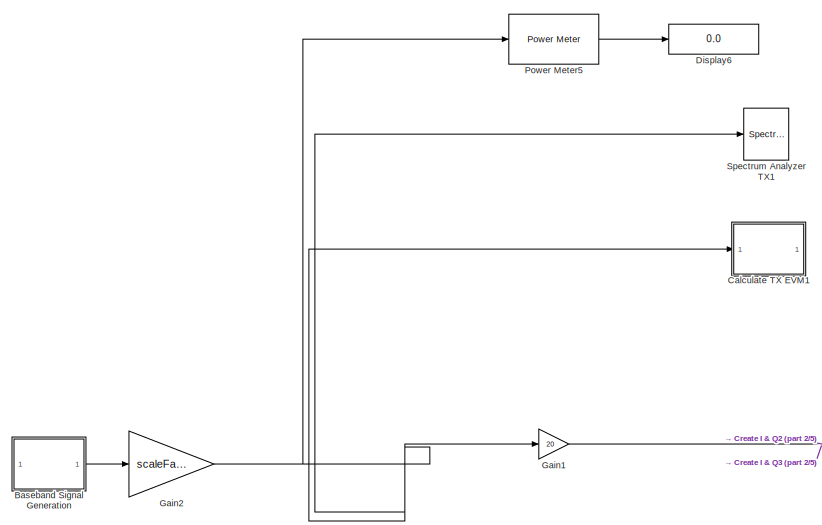
[diagram: root canvas - part 1/5, top left region]
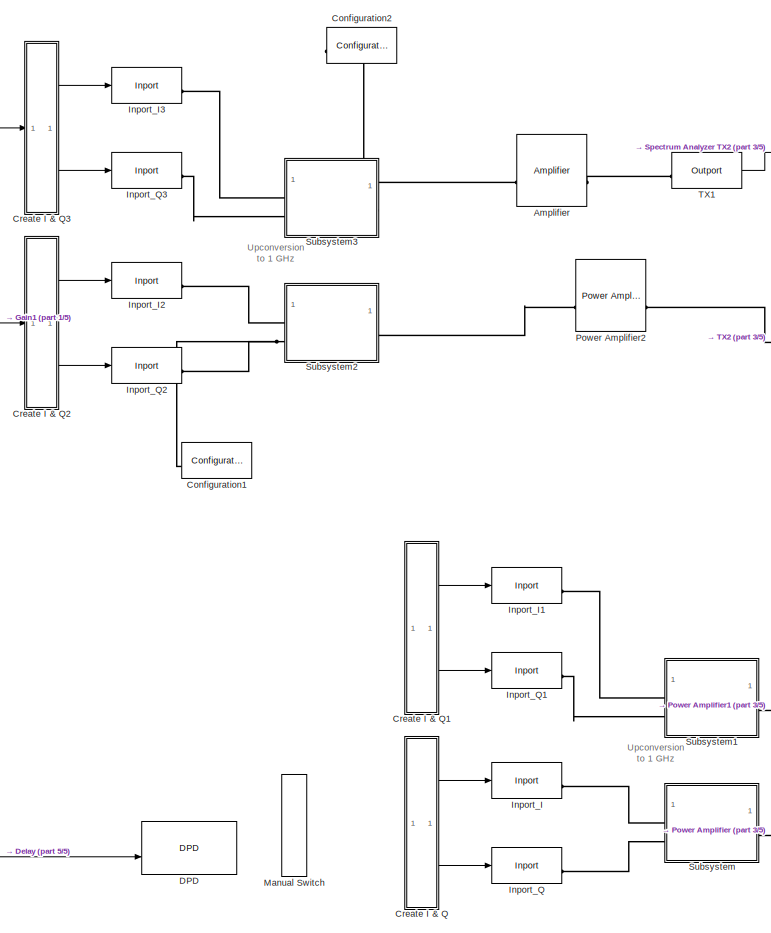
[diagram: root canvas - part 2/5, central region]
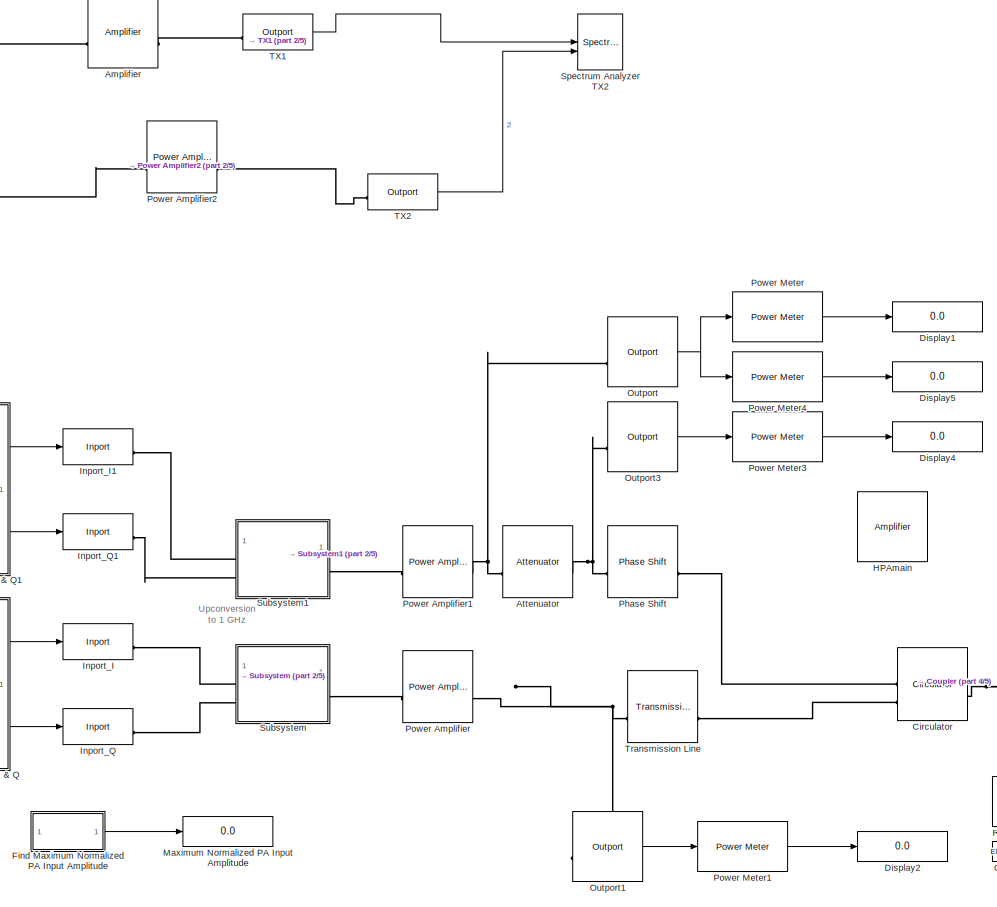
[diagram: root canvas - part 3/5, middle right region]
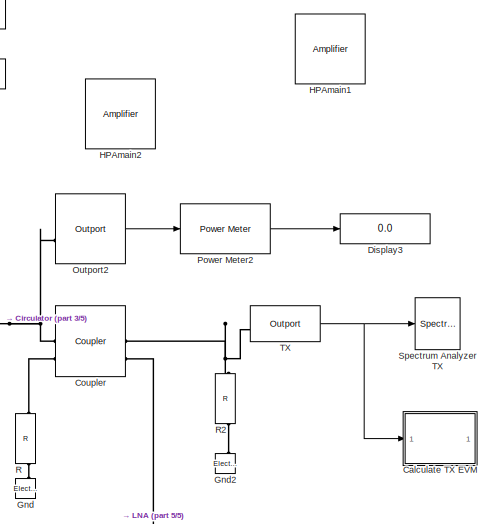
[diagram: root canvas - part 4/5, middle right region]
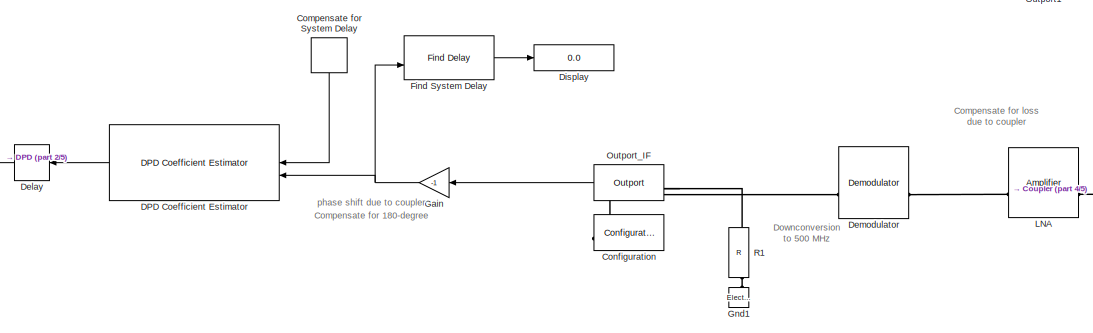
[diagram: root canvas - part 5/5, bottom center region]
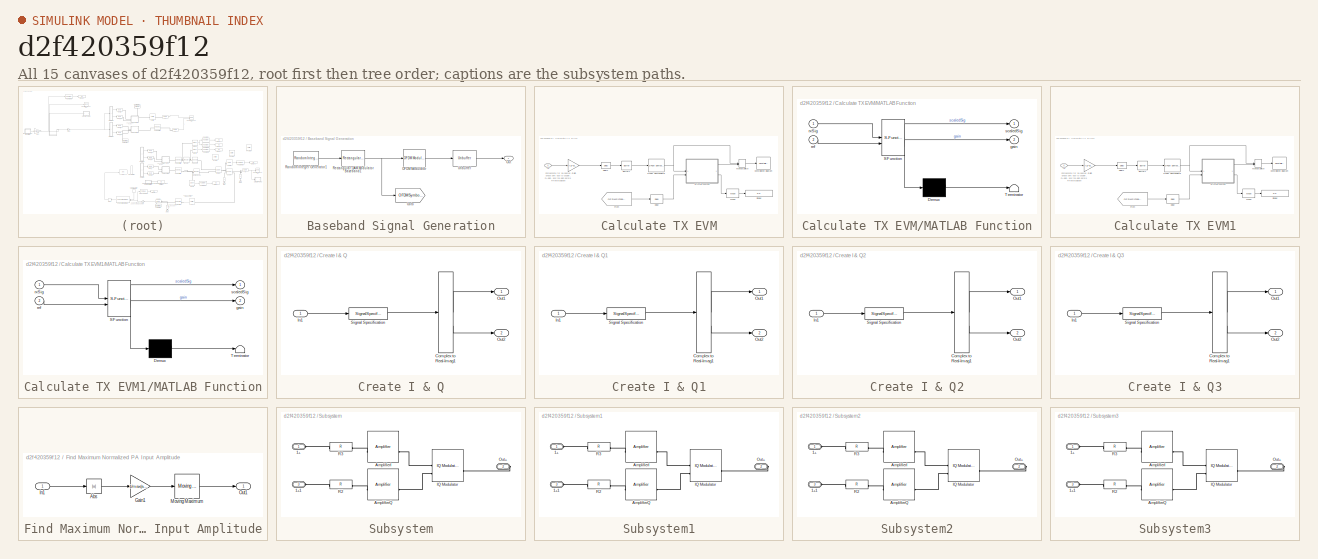
[diagram: thumbnail index - all 15 canvases of the model, root first then tree order]
MODEL slx_d2f420359f12
KIND model
CONFIG AbsTol = auto
CONFIG EnableMultiTasking = off
CONFIG FixedStep = auto
CONFIG InitFcn = tic\n% 100 MHz scenario\n% scs = 30e3;\n% fftLength = 4096;\n% NSubcarriers = 3276;\n% cpLength = 288; \n% windowLength = 20;\n\n% 5 MHz scenario\nscs = 30e3; % Subcarrier spacing\nfftLength = 256;\nNSubcarriers = 132;  \ncpLength = 18;\nwindowLength = 6;\n\nnGuardBandCarrier = fftLength - NSubcarriers;\nofdmSymLen = fftLength+cpLength;\noverSamplingRate = 7;\nfilterLength = 6*70;\n\nBW = scs*fftLength;              ...<+988ch>
CONFIG MaxStep = auto
CONFIG MinStep = auto
CONFIG PreLoadFcn = %{\n% 100 MHz scenario\n% scs = 30e3;\n% fftLength = 4096;\n% NSubcarriers = 3276;\n% cpLength = 288; \n% windowLength = 20;\n\n% 5 MHz scenario\nscs = 30e3;\nfftLength = 256;\nNSubcarriers = 132;  \ncpLength = 18;\nwindowLength = 6;\n\nnGuardBandCarrier = fftLength - NSubcarriers;\nofdmSymLen = fftLength+cpLength;\noverSamplingRate = 7;\nfilterLength = 6*70;\n\nBW = scs*fftLength;                       %  Signal BW\n...<+917ch>
CONFIG RelTol = 1e-3
CONFIG SampleTimeConstraint = Unconstrained
CONFIG SolverName = FixedStepAuto
CONFIG StartFcn = tic
CONFIG StartTime = 0.0
CONFIG StopFcn = lapsedTime = toc;
CONFIG StopTime = 5*Tstep*ofdmSymLen*6
BLOCK [Reference] Amplifier  REF=simrfV2elements/Amplifier
  SourceBlock = simrfV2elements/Amplifier
  SourceType = Amplifier
  UserDataPersistent = on
BLOCK [Reference] Attenuator  REF=simrfV2elements/Attenuator
  Commented = on
  SourceBlock = simrfV2elements/Attenuator
  SourceType = Attenuator
BLOCK [SubSystem] Baseband Signal Generation
  NameLocation = top
BLOCK [Goto] Baseband Signal Generation/Goto
  GotoTag = OFDMSymbols
  TagVisibility = global
BLOCK [Reference] Baseband Signal Generation/OFDM Modulator  REF=commofdm/OFDM Modulator
  SourceBlock = commofdm/OFDM Modulator
  SourceType = OFDM Modulator
BLOCK [Outport] Baseband Signal Generation/Out
  VectorParamsAs1DForOutWhenUnconnected = off
BLOCK [Reference] Baseband Signal Generation/Random Integer Generator1  REF=commrandsrc3/Random Integer
Generator
  SourceBlock = commrandsrc3/Random Integer\nGenerator
  SourceType = Random Integer Generator
BLOCK [Reference] Baseband Signal Generation/Rectangular QAM Modulator Baseband1  REF=commdigbbndam3/Rectangular QAM
Modulator
Baseband
  SourceBlock = commdigbbndam3/Rectangular QAM\nModulator\nBaseband
  SourceType = Rectangular QAM Modulator Baseband
BLOCK [Unbuffer] Baseband Signal Generation/Unbuffer
  NameLocation = top
BLOCK [SubSystem] Calculate TX EVM
  Commented = on
BLOCK [Buffer] Calculate TX EVM/Buffer1
  N = ofdmSymLen*overSamplingRate
  OutputFrames = off
BLOCK [ConstellationDiagram] Calculate TX EVM/Constellation Diagram
  DefaultConfigurationName = comm.scopes.ConstellationDiagramBlockCfg
  EnableMeasurements = on
  GraphicalSettings = {"GraphicalSettings":{"Style":{}}}
  ReferenceConstellation = {[-7+7i  -7+5i  -7+3i  -7+1i  -7-1i  -7-3i  -7-5i  -7-7i  -5+7i  -5+5i  -5+3i  -5+1i  -5-1i  -5-3i  -5-5i  -5-7i  -3+7i  -3+5i  -3+3i  -3+1i  -3-1i  -3-3i  -3-5i  -3-7i  -1+7i  -1+5i  -1+3i  -1+1i  -1-1i  -1-3i  -1-5i  -1-7i   1+7i   1+5i   1+3i   1+1i   1-1i   1-3i   1-5i   1-7i   3+7i   3+5i   3+3i   3+1i   3-1i   3-3i   3-5i   3-7i   5+7i   5+5i   5+3i   5+1i   5-1i   5-3i   5-5i   5-7i   7+7i ...<+50ch>
  ScopeFrameLocation = window
  WasSavedAsWebScope = on
  WindowPosition = [501.000000,93.000000,973.000000,546.000000,]
  XLimits = [-9.7559 9.963]
  YLimits = [-9.7559 9.963]
BLOCK [Delay] Calculate TX EVM/Delay
  DelayLength = 2*(fftLength-2*N-1)
  InputPortMap = u0
  InputProcessing = Columns as channels (frame based)
BLOCK [Delay] Calculate TX EVM/Delay1
  DelayLength = ofdmSymLen*overSamplingRate
  InputPortMap = u0
  InputProcessing = Columns as channels (frame based)
BLOCK [Display] Calculate TX EVM/Display
  Decimation = 1
BLOCK [From] Calculate TX EVM/From
  GotoTag = OFDMSymbols
  TagVisibility = global
BLOCK [Gain] Calculate TX EVM/Gain
  Gain = 1/(1j*gain*scaleFactor)
BLOCK [Inport] Calculate TX EVM/In
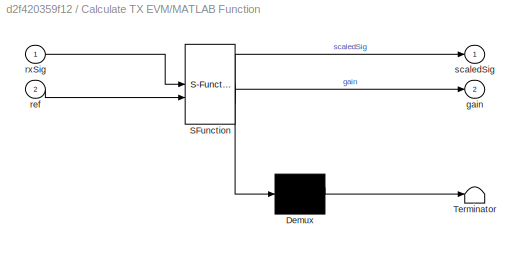
BLOCK [SubSystem] Calculate TX EVM/MATLAB Function
  ErrorFcn = Stateflow.Translate.translate
  PermitHierarchicalResolution = ExplicitOnly
  SFBlockType = MATLAB Function
  TreatAsAtomicUnit = on
BLOCK [Demux] Calculate TX EVM/MATLAB Function/ Demux 
  Outputs = 1
BLOCK [S-Function] Calculate TX EVM/MATLAB Function/ SFunction 
  EnableBusSupport = on
  FunctionName = sf_sfun
  PortCounts = [2 3]
  SFcnIsStateOwnerBlock = off
  SFunctionDeploymentMode = off
  Tag = Stateflow S-Function 2
BLOCK [Terminator] Calculate TX EVM/MATLAB Function/ Terminator 
BLOCK [Outport] Calculate TX EVM/MATLAB Function/gain
  Port = 2
BLOCK [Inport] Calculate TX EVM/MATLAB Function/ref
  Port = 2
BLOCK [Inport] Calculate TX EVM/MATLAB Function/rxSig
BLOCK [Outport] Calculate TX EVM/MATLAB Function/scaledSig
BLOCK [ManualSwitch] Calculate TX EVM/Manual Switch
  CurrentSetting = 0
BLOCK [Reference] Calculate TX EVM/Mean  REF=dspstat3/Mean
  SourceBlock = dspstat3/Mean
  SourceType = Mean
  UserDataPersistent = on
BLOCK [Reference] Calculate TX EVM/OFDM Demodulator  REF=commofdm/OFDM Demodulator
  SourceBlock = commofdm/OFDM Demodulator
  SourceType = OFDM Demodulator
BLOCK [SubSystem] Calculate TX EVM1
BLOCK [Buffer] Calculate TX EVM1/Buffer1
  N = ofdmSymLen*overSamplingRate
  OutputFrames = off
BLOCK [ConstellationDiagram] Calculate TX EVM1/Constellation Diagram
  DefaultConfigurationName = comm.scopes.ConstellationDiagramBlockCfg
  EnableMeasurements = on
  GraphicalSettings = {"GraphicalSettings":{"Style":{}}}
  ReferenceConstellation = {[-7+7i  -7+5i  -7+3i  -7+1i  -7-1i  -7-3i  -7-5i  -7-7i  -5+7i  -5+5i  -5+3i  -5+1i  -5-1i  -5-3i  -5-5i  -5-7i  -3+7i  -3+5i  -3+3i  -3+1i  -3-1i  -3-3i  -3-5i  -3-7i  -1+7i  -1+5i  -1+3i  -1+1i  -1-1i  -1-3i  -1-5i  -1-7i   1+7i   1+5i   1+3i   1+1i   1-1i   1-3i   1-5i   1-7i   3+7i   3+5i   3+3i   3+1i   3-1i   3-3i   3-5i   3-7i   5+7i   5+5i   5+3i   5+1i   5-1i   5-3i   5-5i   5-7i   7+7i ...<+50ch>
  ScopeFrameLocation = window
  Visible = on
  WasSavedAsWebScope = on
  WindowPosition = [501.000000,93.000000,973.000000,546.000000,]
  XLimits = [-9.7559 9.963]
  YLimits = [-9.7559 9.963]
BLOCK [Delay] Calculate TX EVM1/Delay
  DelayLength = 2*(fftLength-2*N-1)
  InputPortMap = u0
  InputProcessing = Columns as channels (frame based)
BLOCK [Delay] Calculate TX EVM1/Delay1
  DelayLength = ofdmSymLen*overSamplingRate
  InputPortMap = u0
  InputProcessing = Columns as channels (frame based)
BLOCK [Display] Calculate TX EVM1/Display
  Decimation = 1
BLOCK [From] Calculate TX EVM1/From
  GotoTag = OFDMSymbols
  TagVisibility = global
BLOCK [Gain] Calculate TX EVM1/Gain
  Gain = 1/(1j*gain*scaleFactor)
BLOCK [Inport] Calculate TX EVM1/In
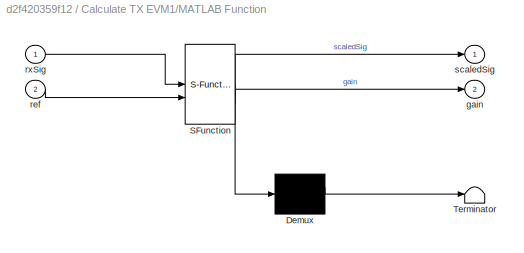
BLOCK [SubSystem] Calculate TX EVM1/MATLAB Function
  ErrorFcn = Stateflow.Translate.translate
  PermitHierarchicalResolution = ExplicitOnly
  SFBlockType = MATLAB Function
  TreatAsAtomicUnit = on
BLOCK [Demux] Calculate TX EVM1/MATLAB Function/ Demux 
  Outputs = 1
BLOCK [S-Function] Calculate TX EVM1/MATLAB Function/ SFunction 
  EnableBusSupport = on
  FunctionName = sf_sfun
  PortCounts = [2 3]
  SFcnIsStateOwnerBlock = off
  SFunctionDeploymentMode = off
  Tag = Stateflow S-Function 1
BLOCK [Terminator] Calculate TX EVM1/MATLAB Function/ Terminator 
BLOCK [Outport] Calculate TX EVM1/MATLAB Function/gain
  Port = 2
BLOCK [Inport] Calculate TX EVM1/MATLAB Function/ref
  Port = 2
BLOCK [Inport] Calculate TX EVM1/MATLAB Function/rxSig
BLOCK [Outport] Calculate TX EVM1/MATLAB Function/scaledSig
BLOCK [ManualSwitch] Calculate TX EVM1/Manual Switch
  CurrentSetting = 0
BLOCK [Reference] Calculate TX EVM1/Mean  REF=dspstat3/Mean
  SourceBlock = dspstat3/Mean
  SourceType = Mean
  UserDataPersistent = on
BLOCK [Reference] Calculate TX EVM1/OFDM Demodulator  REF=commofdm/OFDM Demodulator
  SourceBlock = commofdm/OFDM Demodulator
  SourceType = OFDM Demodulator
BLOCK [Reference] Circulator  REF=simrfV2junction1/Circulator
  Commented = on
  SourceBlock = simrfV2junction1/Circulator
  SourceType = Ideal Circulators
  UserDataPersistent = on
BLOCK [Delay] Compensate for System Delay
  Commented = on
  DelayLength = 0
  InputPortMap = u0
  NameLocation = left
BLOCK [Reference] Configuration  REF=simrfV2util1/Configuration
  Commented = on
  NameLocation = top
  SourceBlock = simrfV2util1/Configuration
  SourceType = Configuration
BLOCK [Reference] Configuration1  REF=simrfV2util1/Configuration
  NameLocation = top
  SourceBlock = simrfV2util1/Configuration
  SourceType = Configuration
BLOCK [Reference] Configuration2  REF=simrfV2util1/Configuration
  NameLocation = top
  SourceBlock = simrfV2util1/Configuration
  SourceType = Configuration
BLOCK [Reference] Coupler  REF=simrfV2junction1/Coupler
  Commented = on
  SourceBlock = simrfV2junction1/Coupler
  SourceType = Ideal Couplers
  UserDataPersistent = on
BLOCK [SubSystem] Create I & Q
  Commented = on
  ShowPortLabels = none
BLOCK [ComplexToRealImag] Create I & Q/Complex to Real-Imag1
BLOCK [Inport] Create I & Q/In1
BLOCK [Outport] Create I & Q/Out1
  VectorParamsAs1DForOutWhenUnconnected = off
BLOCK [Outport] Create I & Q/Out2
  Port = 2
  VectorParamsAs1DForOutWhenUnconnected = off
BLOCK [SignalSpecification] Create I & Q/Signal Specification
  Dimensions = 1
BLOCK [SubSystem] Create I & Q1
  Commented = on
  ShowPortLabels = none
BLOCK [ComplexToRealImag] Create I & Q1/Complex to Real-Imag1
BLOCK [Inport] Create I & Q1/In1
BLOCK [Outport] Create I & Q1/Out1
  VectorParamsAs1DForOutWhenUnconnected = off
BLOCK [Outport] Create I & Q1/Out2
  Port = 2
  VectorParamsAs1DForOutWhenUnconnected = off
BLOCK [SignalSpecification] Create I & Q1/Signal Specification
  Dimensions = 1
BLOCK [SubSystem] Create I & Q2
  ShowPortLabels = none
BLOCK [ComplexToRealImag] Create I & Q2/Complex to Real-Imag1
BLOCK [Inport] Create I & Q2/In1
BLOCK [Outport] Create I & Q2/Out1
  VectorParamsAs1DForOutWhenUnconnected = off
BLOCK [Outport] Create I & Q2/Out2
  Port = 2
  VectorParamsAs1DForOutWhenUnconnected = off
BLOCK [SignalSpecification] Create I & Q2/Signal Specification
  Dimensions = 1
BLOCK [SubSystem] Create I & Q3
  ShowPortLabels = none
BLOCK [ComplexToRealImag] Create I & Q3/Complex to Real-Imag1
BLOCK [Inport] Create I & Q3/In1
BLOCK [Outport] Create I & Q3/Out1
  VectorParamsAs1DForOutWhenUnconnected = off
BLOCK [Outport] Create I & Q3/Out2
  Port = 2
  VectorParamsAs1DForOutWhenUnconnected = off
BLOCK [SignalSpecification] Create I & Q3/Signal Specification
  Dimensions = 1
BLOCK [Reference] DPD  REF=commrfcorlib/DPD
  Commented = on
  SourceBlock = commrfcorlib/DPD
  SourceType = DPD
BLOCK [Reference] DPD Coefficient Estimator  REF=commrfcorlib/DPD
Coefficient Estimator
  Commented = on
  SourceBlock = commrfcorlib/DPD\nCoefficient Estimator
  SourceType = DPD Coefficient Estimator
BLOCK [Delay] Delay
  Commented = on
  DelayLength = 1
  InputPortMap = u0
BLOCK [Reference] Demodulator  REF=simrfV2systems/Demodulator
  Commented = on
  NameLocation = top
  SourceBlock = simrfV2systems/Demodulator
  SourceType = Demodulator
BLOCK [Display] Display
  Commented = on
  Decimation = 1
BLOCK [Display] Display1
  Commented = on
  Decimation = 1
BLOCK [Display] Display2
  Commented = on
  Decimation = 1
BLOCK [Display] Display3
  Commented = on
  Decimation = 1
BLOCK [Display] Display4
  Commented = on
  Decimation = 1
BLOCK [Display] Display5
  Commented = on
  Decimation = 1
BLOCK [Display] Display6
  Decimation = 1
BLOCK [SubSystem] Find Maximum Normalized PA Input Amplitude
  Commented = on
  ShowPortLabels = none
BLOCK [Abs] Find Maximum Normalized PA Input Amplitude/Abs
  SaturateOnIntegerOverflow = off
BLOCK [Gain] Find Maximum Normalized PA Input Amplitude/Gain1
  Gain = 1/max(abs(paInput))
BLOCK [Inport] Find Maximum Normalized PA Input Amplitude/In1
BLOCK [Reference] Find Maximum Normalized PA Input Amplitude/Moving Maximum  REF=dspstat3/Moving
Maximum
  SourceBlock = dspstat3/Moving\nMaximum
  SourceType = dsp.simulink.MovingMaximum
BLOCK [Outport] Find Maximum Normalized PA Input Amplitude/Out1
BLOCK [Reference] Find System Delay  REF=commutil2/Find Delay
  Commented = on
  SourceBlock = commutil2/Find Delay
  SourceType = Find Delay
BLOCK [Gain] Gain
  Commented = on
  Gain = -1
BLOCK [Gain] Gain1
  Gain = 20
BLOCK [Gain] Gain2
  Gain = scaleFactor
BLOCK [Reference] Gnd  REF=simrfV2_lib/Elements/Electrical Reference
  Commented = on
  NameLocation = right
  SourceBlock = simrfV2_lib/Elements/Electrical Reference
  SourceType = Electrical Reference
BLOCK [Reference] Gnd1  REF=simrfV2_lib/Elements/Electrical Reference
  Commented = on
  NameLocation = right
  SourceBlock = simrfV2_lib/Elements/Electrical Reference
  SourceType = Electrical Reference
BLOCK [Reference] Gnd2  REF=simrfV2_lib/Elements/Electrical Reference
  Commented = on
  NameLocation = right
  SourceBlock = simrfV2_lib/Elements/Electrical Reference
  SourceType = Electrical Reference
BLOCK [Reference] HPAmain  REF=simrfV2elements/Amplifier
  Commented = on
  SourceBlock = simrfV2elements/Amplifier
  SourceType = Amplifier
  UserDataPersistent = on
BLOCK [Reference] HPAmain1  REF=simrfV2elements/Amplifier
  Commented = on
  SourceBlock = simrfV2elements/Amplifier
  SourceType = Amplifier
  UserDataPersistent = on
BLOCK [Reference] HPAmain2  REF=simrfV2elements/Amplifier
  Commented = on
  SourceBlock = simrfV2elements/Amplifier
  SourceType = Amplifier
  UserDataPersistent = on
BLOCK [Reference] Inport_I  REF=simrfV2util1/Inport
  Commented = on
  SourceBlock = simrfV2util1/Inport
  SourceType = Inport
BLOCK [Reference] Inport_I1  REF=simrfV2util1/Inport
  Commented = on
  SourceBlock = simrfV2util1/Inport
  SourceType = Inport
BLOCK [Reference] Inport_I2  REF=simrfV2util1/Inport
  SourceBlock = simrfV2util1/Inport
  SourceType = Inport
BLOCK [Reference] Inport_I3  REF=simrfV2util1/Inport
  SourceBlock = simrfV2util1/Inport
  SourceType = Inport
BLOCK [Reference] Inport_Q  REF=simrfV2util1/Inport
  Commented = on
  SourceBlock = simrfV2util1/Inport
  SourceType = Inport
BLOCK [Reference] Inport_Q1  REF=simrfV2util1/Inport
  Commented = on
  SourceBlock = simrfV2util1/Inport
  SourceType = Inport
BLOCK [Reference] Inport_Q2  REF=simrfV2util1/Inport
  SourceBlock = simrfV2util1/Inport
  SourceType = Inport
BLOCK [Reference] Inport_Q3  REF=simrfV2util1/Inport
  SourceBlock = simrfV2util1/Inport
  SourceType = Inport
BLOCK [Reference] LNA  REF=simrfV2elements/Amplifier
  Commented = on
  SourceBlock = simrfV2elements/Amplifier
  SourceType = Amplifier
BLOCK [ManualSwitch] Manual Switch
  Commented = on
  CurrentSetting = 0
BLOCK [Display] Maximum Normalized PA Input Amplitude
  Commented = on
  Decimation = 1
BLOCK [Reference] Outport  REF=simrfV2util1/Outport
  Commented = on
  SourceBlock = simrfV2util1/Outport
  SourceType = Outport
BLOCK [Reference] Outport1  REF=simrfV2util1/Outport
  Commented = on
  SourceBlock = simrfV2util1/Outport
  SourceType = Outport
BLOCK [Reference] Outport2  REF=simrfV2util1/Outport
  Commented = on
  SourceBlock = simrfV2util1/Outport
  SourceType = Outport
BLOCK [Reference] Outport3  REF=simrfV2util1/Outport
  Commented = on
  SourceBlock = simrfV2util1/Outport
  SourceType = Outport
BLOCK [Reference] Outport_IF  REF=simrfV2util1/Outport
  Commented = on
  NameLocation = top
  SourceBlock = simrfV2util1/Outport
  SourceType = Outport
BLOCK [Reference] Phase Shift  REF=simrfV2elements/Phase Shift
  Commented = on
  SourceBlock = simrfV2elements/Phase Shift
  SourceType = Phase Shift
BLOCK [Reference] Power Amplifier  REF=simrfV2elements/Power Amplifier
  Commented = on
  SourceBlock = simrfV2elements/Power Amplifier
  SourceType = Power Amplifier with Memory
BLOCK [Reference] Power Amplifier1  REF=simrfV2elements/Power Amplifier
  Commented = on
  SourceBlock = simrfV2elements/Power Amplifier
  SourceType = Power Amplifier with Memory
BLOCK [Reference] Power Amplifier2  REF=simrfV2elements/Power Amplifier
  Commented = through
  SourceBlock = simrfV2elements/Power Amplifier
  SourceType = Power Amplifier with Memory
BLOCK [Reference] Power Meter  REF=dspstat3/Power Meter
  Commented = on
  LibrarySourceBlock = commutil2/Power Meter
  SourceBlock = dspstat3/Power Meter
  SourceType = dsp.simulink.PowerMeter
BLOCK [Reference] Power Meter1  REF=dspstat3/Power Meter
  Commented = on
  LibrarySourceBlock = commutil2/Power Meter
  SourceBlock = dspstat3/Power Meter
  SourceType = dsp.simulink.PowerMeter
BLOCK [Reference] Power Meter2  REF=dspstat3/Power Meter
  Commented = on
  LibrarySourceBlock = commutil2/Power Meter
  SourceBlock = dspstat3/Power Meter
  SourceType = dsp.simulink.PowerMeter
BLOCK [Reference] Power Meter3  REF=dspstat3/Power Meter
  Commented = on
  LibrarySourceBlock = commutil2/Power Meter
  SourceBlock = dspstat3/Power Meter
  SourceType = dsp.simulink.PowerMeter
BLOCK [Reference] Power Meter4  REF=dspstat3/Power Meter
  Commented = on
  LibrarySourceBlock = commutil2/Power Meter
  SourceBlock = dspstat3/Power Meter
  SourceType = dsp.simulink.PowerMeter
BLOCK [Reference] Power Meter5  REF=dspstat3/Power Meter
  LibrarySourceBlock = commutil2/Power Meter
  SourceBlock = dspstat3/Power Meter
  SourceType = dsp.simulink.PowerMeter
BLOCK [Reference] R  REF=simrfV2elements/R
  Commented = on
  NameLocation = left
  SourceBlock = simrfV2elements/R
  SourceType = Resistor
BLOCK [Reference] R1  REF=simrfV2elements/R
  Commented = on
  NameLocation = left
  SourceBlock = simrfV2elements/R
  SourceType = Resistor
BLOCK [Reference] R2  REF=simrfV2elements/R
  Commented = on
  NameLocation = left
  SourceBlock = simrfV2elements/R
  SourceType = Resistor
BLOCK [SpectrumAnalyzer] Spectrum Analyzer TX
  AveragingMethod = Running
  AxesScaling = Manual
  Commented = on
  DefaultConfigurationName = spbscopes.SpectrumAnalyzerBlockCfg
  ExpandToolstrip = on
  FrequencyInputRBWFromPort = 0
  FrequencyInputRBWPort = 0
  FrequencyResolutionMethod = Window length
  FrequencyVectorFromPort = 0
  FrequencyVectorPort = 0
  GraphicalSettings = {"GraphicalSettings":{"Style":{"BackgroundColor":[0.1568627450980392,0.1568627450980392,0.1568627450980392],"AxesColor":[0,0,0],"LabelsColor":[0.6862745098039216,0.6862745098039216,0.6862745098039216],"PreserveColors":false,"Visible":[true],"LineStyle":["-"],"LineColor":[[1,1,0.06666666666666667]],"LineWidth":[0.5],"Marker":["none"],"FontSize":"small"},"Cursors":{"Enabled":false,"XLocation":[2,8],...<+828ch>
  IsFrequencyInputMode = 0
  Method = Welch
  NameLocation = top
  ReferenceLoad = 50
  SampleRate = 860160000
  ScopeFrameLocation = window
  ScopeSpecificationString = spbscopes.SpectrumAnalyzerBlockCfg('CurrentConfiguration', extmgr.ConfigurationSet(extmgr.Configuration('Core','General UI',true),extmgr.Configuration('Core','Source UI',true),extmgr.Configuration('Sources','WiredSimulink',true),extmgr.Configuration('Sources','Streaming',false),extmgr.Configuration('Sources','Simulink',false),extmgr.Configuration('Sources','Workspace',false),extmgr.Configuration('...<+3454ch>  <repeated x3 — deduplicated; at blocks: Spectrum Analyzer TX, Spectrum Analyzer TX1, Spectrum Analyzer TX2>
  Span = 1843200000
  SpectralAverages = 4
  StartFrequency = -921600000
  StopFrequency = 921600000
  WasSavedAsWebScope = on
  WindowLength = 8192
  WindowPosition = [1.000000,49.000000,1920.000000,1009.000000,]
  YLimits = [-76.29372752,28.83162013]
BLOCK [SpectrumAnalyzer] Spectrum Analyzer TX1
  AveragingMethod = Running
  AxesScaling = Manual
  Commented = on
  DefaultConfigurationName = spbscopes.SpectrumAnalyzerBlockCfg
  ExpandToolstrip = on
  FrequencyInputRBWFromPort = 0
  FrequencyInputRBWPort = 0
  FrequencyResolutionMethod = Window length
  FrequencyVectorFromPort = 0
  FrequencyVectorPort = 0
  GraphicalSettings = {"GraphicalSettings":{"Style":{"BackgroundColor":[0.1568627450980392,0.1568627450980392,0.1568627450980392],"AxesColor":[0,0,0],"LabelsColor":[0.6862745098039216,0.6862745098039216,0.6862745098039216],"PreserveColors":false,"Visible":[true],"LineStyle":["-"],"LineColor":[[1,1,0.06666666666666667]],"LineWidth":[0.5],"Marker":["none"],"FontSize":"small"},"Cursors":{"Enabled":false,"XLocation":[2,8],...<+828ch>
  IsFrequencyInputMode = 0
  NameLocation = top
  ReferenceLoad = 50
  SampleRate = 860160000
  ScopeFrameLocation = window
  Span = 1843200000
  SpectralAverages = 4
  StartFrequency = -921600000
  StopFrequency = 921600000
  WasSavedAsWebScope = on
  WindowLength = 8192
  WindowPosition = [1.000000,49.000000,1920.000000,1009.000000,]
  YLimits = [-179.09714316,8.32050372]
BLOCK [SpectrumAnalyzer] Spectrum Analyzer TX2
  AveragingMethod = Running
  AxesScaling = Manual
  DefaultConfigurationName = spbscopes.SpectrumAnalyzerBlockCfg
  ExpandToolstrip = on
  FrequencyInputRBWFromPort = 0
  FrequencyInputRBWPort = 0
  FrequencyResolutionMethod = Window length
  FrequencyVectorFromPort = 0
  FrequencyVectorPort = 0
  GraphicalSettings = {"GraphicalSettings":{"Style":{"BackgroundColor":[0.1568627450980392,0.1568627450980392,0.1568627450980392],"AxesColor":[0,0,0],"LabelsColor":[0.6862745098039216,0.6862745098039216,0.6862745098039216],"PreserveColors":false,"Visible":[true,true],"LineStyle":["-","-"],"LineColor":[[1,1,0.06666666666666667],[0.07450980392156863,0.6235294117647059,1]],"LineWidth":[0.5,1.5],"Marker":["none","none"],"F...<+891ch>
  IsFrequencyInputMode = 0
  NameLocation = top
  NumInputPorts = 2
  ReferenceLoad = 50
  SampleRate = 860160000
  ScopeFrameLocation = window
  ShowLegend = on
  Span = 1843200000
  SpectralAverages = 4
  StartFrequency = -921600000
  StopFrequency = 921600000
  Visible = on
  WasSavedAsWebScope = on
  WindowLength = 8192
  WindowPosition = [1.000000,49.000000,1920.000000,1009.000000,]
  YLimits = [-105.72280799,47.03546634]
BLOCK [SubSystem] Subsystem
  Commented = on
  ShowPortLabels = none
BLOCK [PMIOPort] Subsystem/1+
  Side = Left
BLOCK [PMIOPort] Subsystem/1+1
  Port = 3
  Side = Left
BLOCK [Reference] Subsystem/AmplifierI  REF=simrfV2elements/Amplifier
  NameLocation = top
  SourceBlock = simrfV2elements/Amplifier
  SourceType = Amplifier
BLOCK [Reference] Subsystem/AmplifierQ  REF=simrfV2elements/Amplifier
  SourceBlock = simrfV2elements/Amplifier
  SourceType = Amplifier
BLOCK [Reference] Subsystem/IQ Modulator  REF=simrfV2systems/IQ Modulator
  SourceBlock = simrfV2systems/IQ Modulator
  SourceType = IQ Modulator
BLOCK [PMIOPort] Subsystem/Out+
  Port = 2
  Side = Right
BLOCK [Reference] Subsystem/R2  REF=simrfV2elements/R
  SourceBlock = simrfV2elements/R
  SourceType = Resistor
BLOCK [Reference] Subsystem/R3  REF=simrfV2elements/R
  SourceBlock = simrfV2elements/R
  SourceType = Resistor
BLOCK [SubSystem] Subsystem1
  Commented = on
  ShowPortLabels = none
BLOCK [PMIOPort] Subsystem1/1+
  Side = Left
BLOCK [PMIOPort] Subsystem1/1+1
  Port = 3
  Side = Left
BLOCK [Reference] Subsystem1/AmplifierI  REF=simrfV2elements/Amplifier
  NameLocation = top
  SourceBlock = simrfV2elements/Amplifier
  SourceType = Amplifier
BLOCK [Reference] Subsystem1/AmplifierQ  REF=simrfV2elements/Amplifier
  SourceBlock = simrfV2elements/Amplifier
  SourceType = Amplifier
BLOCK [Reference] Subsystem1/IQ Modulator  REF=simrfV2systems/IQ Modulator
  SourceBlock = simrfV2systems/IQ Modulator
  SourceType = IQ Modulator
BLOCK [PMIOPort] Subsystem1/Out+
  Port = 2
  Side = Right
BLOCK [Reference] Subsystem1/R2  REF=simrfV2elements/R
  SourceBlock = simrfV2elements/R
  SourceType = Resistor
BLOCK [Reference] Subsystem1/R3  REF=simrfV2elements/R
  SourceBlock = simrfV2elements/R
  SourceType = Resistor
BLOCK [SubSystem] Subsystem2
  ShowPortLabels = none
BLOCK [PMIOPort] Subsystem2/1+
  Side = Left
BLOCK [PMIOPort] Subsystem2/1+1
  Port = 3
  Side = Left
BLOCK [Reference] Subsystem2/AmplifierI  REF=simrfV2elements/Amplifier
  NameLocation = top
  SourceBlock = simrfV2elements/Amplifier
  SourceType = Amplifier
BLOCK [Reference] Subsystem2/AmplifierQ  REF=simrfV2elements/Amplifier
  SourceBlock = simrfV2elements/Amplifier
  SourceType = Amplifier
BLOCK [Reference] Subsystem2/IQ Modulator  REF=simrfV2systems/IQ Modulator
  SourceBlock = simrfV2systems/IQ Modulator
  SourceType = IQ Modulator
BLOCK [PMIOPort] Subsystem2/Out+
  Port = 2
  Side = Right
BLOCK [Reference] Subsystem2/R2  REF=simrfV2elements/R
  SourceBlock = simrfV2elements/R
  SourceType = Resistor
BLOCK [Reference] Subsystem2/R3  REF=simrfV2elements/R
  SourceBlock = simrfV2elements/R
  SourceType = Resistor
BLOCK [SubSystem] Subsystem3
  ShowPortLabels = none
BLOCK [PMIOPort] Subsystem3/1+
  Side = Left
BLOCK [PMIOPort] Subsystem3/1+1
  Port = 3
  Side = Left
BLOCK [Reference] Subsystem3/AmplifierI  REF=simrfV2elements/Amplifier
  NameLocation = top
  SourceBlock = simrfV2elements/Amplifier
  SourceType = Amplifier
BLOCK [Reference] Subsystem3/AmplifierQ  REF=simrfV2elements/Amplifier
  SourceBlock = simrfV2elements/Amplifier
  SourceType = Amplifier
BLOCK [Reference] Subsystem3/IQ Modulator  REF=simrfV2systems/IQ Modulator
  SourceBlock = simrfV2systems/IQ Modulator
  SourceType = IQ Modulator
BLOCK [PMIOPort] Subsystem3/Out+
  Port = 2
  Side = Right
BLOCK [Reference] Subsystem3/R2  REF=simrfV2elements/R
  SourceBlock = simrfV2elements/R
  SourceType = Resistor
BLOCK [Reference] Subsystem3/R3  REF=simrfV2elements/R
  SourceBlock = simrfV2elements/R
  SourceType = Resistor
BLOCK [Reference] TX  REF=simrfV2util1/Outport
  Commented = on
  SourceBlock = simrfV2util1/Outport
  SourceType = Outport
BLOCK [Reference] TX1  REF=simrfV2util1/Outport
  SourceBlock = simrfV2util1/Outport
  SourceType = Outport
BLOCK [Reference] TX2  REF=simrfV2util1/Outport
  SourceBlock = simrfV2util1/Outport
  SourceType = Outport
BLOCK [Reference] Transmission Line  REF=simrfV2elements/Transmission
Line
  Commented = on
  NameLocation = top
  SourceBlock = simrfV2elements/Transmission\nLine
  SourceType = Transmission Line
  UserDataPersistent = on
ANNOTATION (root): Downconversion to 500 MHz
ANNOTATION (root): Upconversion to 1 GHz
ANNOTATION (root): Compensate for 180-degree phase shift due to coupler
ANNOTATION (root): Compensate for loss due to coupler
ANNOTATION Calculate TX EVM: Compensate for 90-degree phase shift due to coupler, PA gain, and the gain before FIR interpolation
ANNOTATION Calculate TX EVM1: Compensate for 90-degree phase shift due to coupler, PA gain, and the gain before FIR interpolation
LINE Baseband Signal Generation/OFDM Modulator:1 -> Baseband Signal Generation/Unbuffer:1
LINE Baseband Signal Generation/Random Integer Generator1:1 -> Baseband Signal Generation/Rectangular QAM Modulator Baseband1:1
NET Baseband Signal Generation/Rectangular QAM Modulator Baseband1:1 -> Baseband Signal Generation/Goto:1, Baseband Signal Generation/OFDM Modulator:1
LINE Baseband Signal Generation/Unbuffer:1 -> Baseband Signal Generation/Out:1
LINE Baseband Signal Generation:1 -> Gain2:1
LINE Calculate TX EVM/Buffer1:1 -> Calculate TX EVM/OFDM Demodulator:1
LINE Calculate TX EVM/Delay1:1 -> Calculate TX EVM/Buffer1:1
LINE Calculate TX EVM/Delay:1 -> Calculate TX EVM/MATLAB Function:2
LINE Calculate TX EVM/From:1 -> Calculate TX EVM/Delay:1
LINE Calculate TX EVM/Gain:1 -> Calculate TX EVM/Delay1:1
LINE Calculate TX EVM/In:1 -> Calculate TX EVM/Gain:1
LINE Calculate TX EVM/MATLAB Function:1 -> Calculate TX EVM/Manual Switch:2
LINE Calculate TX EVM/MATLAB Function:2 -> Calculate TX EVM/Mean:1
LINE Calculate TX EVM/Manual Switch:1 -> Calculate TX EVM/Constellation Diagram:1
LINE Calculate TX EVM/Mean:1 -> Calculate TX EVM/Display:1
NET Calculate TX EVM/OFDM Demodulator:1 -> Calculate TX EVM/MATLAB Function:1, Calculate TX EVM/Manual Switch:1
LINE Calculate TX EVM1/Buffer1:1 -> Calculate TX EVM1/OFDM Demodulator:1
LINE Calculate TX EVM1/Delay1:1 -> Calculate TX EVM1/Buffer1:1
LINE Calculate TX EVM1/Delay:1 -> Calculate TX EVM1/MATLAB Function:2
LINE Calculate TX EVM1/From:1 -> Calculate TX EVM1/Delay:1
LINE Calculate TX EVM1/Gain:1 -> Calculate TX EVM1/Delay1:1
LINE Calculate TX EVM1/In:1 -> Calculate TX EVM1/Gain:1
LINE Calculate TX EVM1/MATLAB Function:1 -> Calculate TX EVM1/Manual Switch:2
LINE Calculate TX EVM1/MATLAB Function:2 -> Calculate TX EVM1/Mean:1
LINE Calculate TX EVM1/Manual Switch:1 -> Calculate TX EVM1/Constellation Diagram:1
LINE Calculate TX EVM1/Mean:1 -> Calculate TX EVM1/Display:1
NET Calculate TX EVM1/OFDM Demodulator:1 -> Calculate TX EVM1/MATLAB Function:1, Calculate TX EVM1/Manual Switch:1
LINE Compensate for System Delay:1 -> DPD Coefficient Estimator:1
LINE Create I & Q/Complex to Real-Imag1:1 -> Create I & Q/Out1:1
LINE Create I & Q/Complex to Real-Imag1:2 -> Create I & Q/Out2:1
LINE Create I & Q/In1:1 -> Create I & Q/Signal Specification:1
LINE Create I & Q/Signal Specification:1 -> Create I & Q/Complex to Real-Imag1:1
LINE Create I & Q1/Complex to Real-Imag1:1 -> Create I & Q1/Out1:1
LINE Create I & Q1/Complex to Real-Imag1:2 -> Create I & Q1/Out2:1
LINE Create I & Q1/In1:1 -> Create I & Q1/Signal Specification:1
LINE Create I & Q1/Signal Specification:1 -> Create I & Q1/Complex to Real-Imag1:1
LINE Create I & Q1:1 -> Inport_I1:1
LINE Create I & Q1:2 -> Inport_Q1:1
LINE Create I & Q2/Complex to Real-Imag1:1 -> Create I & Q2/Out1:1
LINE Create I & Q2/Complex to Real-Imag1:2 -> Create I & Q2/Out2:1
LINE Create I & Q2/In1:1 -> Create I & Q2/Signal Specification:1
LINE Create I & Q2/Signal Specification:1 -> Create I & Q2/Complex to Real-Imag1:1
LINE Create I & Q2:1 -> Inport_I2:1
LINE Create I & Q2:2 -> Inport_Q2:1
LINE Create I & Q3/Complex to Real-Imag1:1 -> Create I & Q3/Out1:1
LINE Create I & Q3/Complex to Real-Imag1:2 -> Create I & Q3/Out2:1
LINE Create I & Q3/In1:1 -> Create I & Q3/Signal Specification:1
LINE Create I & Q3/Signal Specification:1 -> Create I & Q3/Complex to Real-Imag1:1
LINE Create I & Q3:1 -> Inport_I3:1
LINE Create I & Q3:2 -> Inport_Q3:1
LINE Create I & Q:1 -> Inport_I:1
LINE Create I & Q:2 -> Inport_Q:1
LINE DPD Coefficient Estimator:1 -> Delay:1
LINE Delay:1 -> DPD:2
LINE Find Maximum Normalized PA Input Amplitude/Abs:1 -> Find Maximum Normalized PA Input Amplitude/Gain1:1
LINE Find Maximum Normalized PA Input Amplitude/Gain1:1 -> Find Maximum Normalized PA Input Amplitude/Moving Maximum:1
LINE Find Maximum Normalized PA Input Amplitude/In1:1 -> Find Maximum Normalized PA Input Amplitude/Abs:1
LINE Find Maximum Normalized PA Input Amplitude/Moving Maximum:1 -> Find Maximum Normalized PA Input Amplitude/Out1:1
LINE Find Maximum Normalized PA Input Amplitude:1 -> Maximum Normalized PA Input Amplitude:1
LINE Find System Delay:1 -> Display:1
NET Gain1:1 -> Create I & Q2:1, Create I & Q3:1
NET Gain2:1 -> Calculate TX EVM1:1, Gain1:1, Power Meter5:1, Spectrum Analyzer TX1:1
NET Gain:1 -> DPD Coefficient Estimator:2, Find System Delay:2
LINE Outport1:1 -> Power Meter1:1
LINE Outport2:1 -> Power Meter2:1
LINE Outport3:1 -> Power Meter3:1
NET Outport:1 -> Power Meter4:1, Power Meter:1
LINE Outport_IF:1 -> Gain:1
LINE Power Meter1:1 -> Display2:1
LINE Power Meter2:1 -> Display3:1
LINE Power Meter3:1 -> Display4:1
LINE Power Meter4:1 -> Display5:1
LINE Power Meter5:1 -> Display6:1
LINE Power Meter:1 -> Display1:1
LINE TX1:1 -> Spectrum Analyzer TX2:1
LINE TX2:1 -> Spectrum Analyzer TX2:2
NET TX:1 -> Calculate TX EVM:1, Spectrum Analyzer TX:1
PNET net1: Amplifier:LConn1 -- Configuration2:LConn1 -- Subsystem3:RConn1
PLINE Amplifier:RConn1 -- TX1:LConn1
PNET net2: Attenuator:LConn1 -- Outport:LConn1 -- Power Amplifier1:RConn1
PNET net3: Attenuator:RConn1 -- Outport3:LConn1 -- Phase Shift:LConn1
PLINE Circulator:LConn1 -- Phase Shift:RConn1
PLINE Circulator:LConn2 -- Transmission Line:LConn1
PNET net4: Circulator:RConn1 -- Coupler:LConn1 -- Outport2:LConn1
PNET net5: Configuration1:LConn1 -- Inport_Q2:RConn1 -- Subsystem2:LConn2
PNET net6: Configuration:LConn1 -- Demodulator:RConn1 -- Outport_IF:LConn1 -- R1:LConn1
PLINE Coupler:LConn2 -- R:LConn1
PNET net7: Coupler:RConn1 -- R2:LConn1 -- TX:LConn1
PLINE Coupler:RConn2 -- LNA:LConn1
PLINE Demodulator:LConn1 -- LNA:RConn1
PLINE Gnd1:LConn1 -- R1:RConn1
PLINE Gnd2:LConn1 -- R2:RConn1
PLINE Gnd:LConn1 -- R:RConn1
PLINE Inport_I1:RConn1 -- Subsystem1:LConn1
PLINE Inport_I2:RConn1 -- Subsystem2:LConn1
PLINE Inport_I3:RConn1 -- Subsystem3:LConn1
PLINE Inport_I:RConn1 -- Subsystem:LConn1
PLINE Inport_Q1:RConn1 -- Subsystem1:LConn2
PLINE Inport_Q3:RConn1 -- Subsystem3:LConn2
PLINE Inport_Q:RConn1 -- Subsystem:LConn2
PNET net8: Outport1:LConn1 -- Power Amplifier:RConn1 -- Transmission Line:RConn1
PLINE Power Amplifier1:LConn1 -- Subsystem1:RConn1
PLINE Power Amplifier2:LConn1 -- Subsystem2:RConn1
PLINE Power Amplifier2:RConn1 -- TX2:LConn1
PLINE Power Amplifier:LConn1 -- Subsystem:RConn1
PLINE Subsystem/1+1:RConn1 -- Subsystem/R2:LConn1
PLINE Subsystem/1+:RConn1 -- Subsystem/R3:LConn1
PLINE Subsystem/AmplifierI:LConn1 -- Subsystem/R3:RConn1
PLINE Subsystem/AmplifierI:RConn1 -- Subsystem/IQ Modulator:LConn1
PLINE Subsystem/AmplifierQ:LConn1 -- Subsystem/R2:RConn1
PLINE Subsystem/AmplifierQ:RConn1 -- Subsystem/IQ Modulator:LConn2
PLINE Subsystem/IQ Modulator:RConn1 -- Subsystem/Out+:RConn1
PLINE Subsystem1/1+1:RConn1 -- Subsystem1/R2:LConn1
PLINE Subsystem1/1+:RConn1 -- Subsystem1/R3:LConn1
PLINE Subsystem1/AmplifierI:LConn1 -- Subsystem1/R3:RConn1
PLINE Subsystem1/AmplifierI:RConn1 -- Subsystem1/IQ Modulator:LConn1
PLINE Subsystem1/AmplifierQ:LConn1 -- Subsystem1/R2:RConn1
PLINE Subsystem1/AmplifierQ:RConn1 -- Subsystem1/IQ Modulator:LConn2
PLINE Subsystem1/IQ Modulator:RConn1 -- Subsystem1/Out+:RConn1
PLINE Subsystem2/1+1:RConn1 -- Subsystem2/R2:LConn1
PLINE Subsystem2/1+:RConn1 -- Subsystem2/R3:LConn1
PLINE Subsystem2/AmplifierI:LConn1 -- Subsystem2/R3:RConn1
PLINE Subsystem2/AmplifierI:RConn1 -- Subsystem2/IQ Modulator:LConn1
PLINE Subsystem2/AmplifierQ:LConn1 -- Subsystem2/R2:RConn1
PLINE Subsystem2/AmplifierQ:RConn1 -- Subsystem2/IQ Modulator:LConn2
PLINE Subsystem2/IQ Modulator:RConn1 -- Subsystem2/Out+:RConn1
PLINE Subsystem3/1+1:RConn1 -- Subsystem3/R2:LConn1
PLINE Subsystem3/1+:RConn1 -- Subsystem3/R3:LConn1
PLINE Subsystem3/AmplifierI:LConn1 -- Subsystem3/R3:RConn1
PLINE Subsystem3/AmplifierI:RConn1 -- Subsystem3/IQ Modulator:LConn1
PLINE Subsystem3/AmplifierQ:LConn1 -- Subsystem3/R2:RConn1
PLINE Subsystem3/AmplifierQ:RConn1 -- Subsystem3/IQ Modulator:LConn2
PLINE Subsystem3/IQ Modulator:RConn1 -- Subsystem3/Out+:RConn1
note: NET lines group one-source signal fan-out (src -> all destinations, sorted); 1:1 wires keep LINE; PNET lines group multi-terminal physical nets as a canonical sorted terminal list (undirected conserving connections); 2-terminal nets keep the pairwise PLINE form
CHART Calculate TX EVM/MATLAB Function states=1 transitions=1
  STATE_LABEL 'eML_blk_kernel()'
  STATE_LABEL 'SCRIPT:\nfunction [scaledSig, gain] = scaleRotate(rxSig,ref)\npersistent c\npersistent invCov\nif isempty(c)\n    c = complex(ones(size(rxSig)));\nend\nif isempty(invCov)\n    invCov = complex(ones(size(rxSig)));\nend\n\nscaledSig = c.*rxSig;\nerrsig = ref - scaledSig;\n\n% RLS algorithm\nlambda = 0.99;\nXP = conj(rxSig).*invCov;\ninvDen = 1./(lambda + XP.*rxSig);\nK = invDen.*(invCov.*rxSig);\ninvCov = (1/lambda)*(...<+54ch>'
CHART Calculate TX EVM1/MATLAB Function states=1 transitions=1
  STATE_LABEL 'eML_blk_kernel()'
  STATE_LABEL 'SCRIPT:\nfunction [scaledSig, gain] = scaleRotate(rxSig,ref)\npersistent c\npersistent invCov\nif isempty(c)\n    c = complex(ones(size(rxSig)));\nend\nif isempty(invCov)\n    invCov = complex(ones(size(rxSig)));\nend\n\nscaledSig = c.*rxSig;\nerrsig = ref - scaledSig;\n\n% RLS algorithm\nlambda = 0.99;\nXP = conj(rxSig).*invCov;\ninvDen = 1./(lambda + XP.*rxSig);\nK = invDen.*(invCov.*rxSig);\ninvCov = (1/lambda)*(...<+54ch>'
CHART  states=0 transitions=0
CHART  states=0 transitions=0
